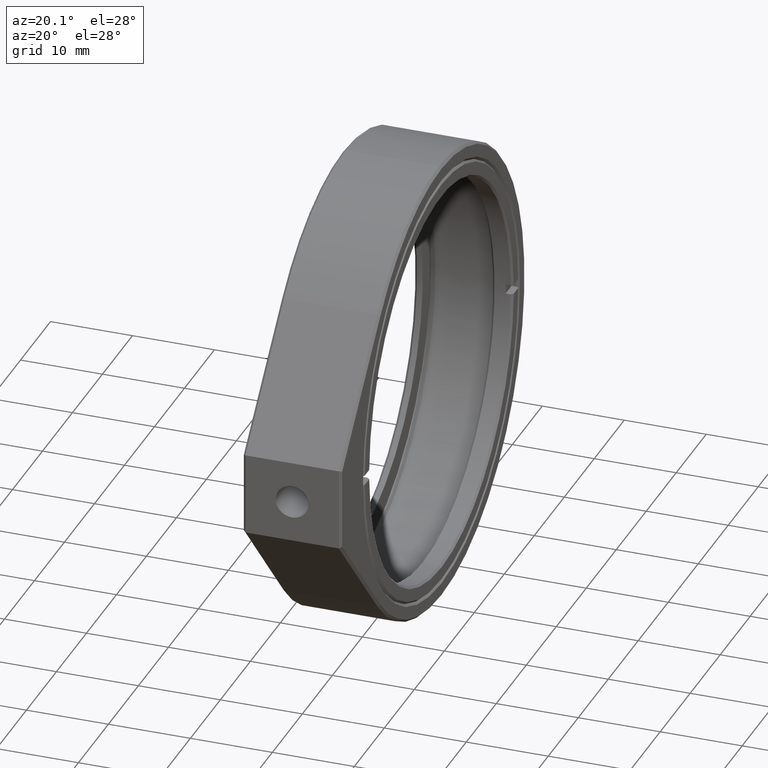
[diagram: clean part render]
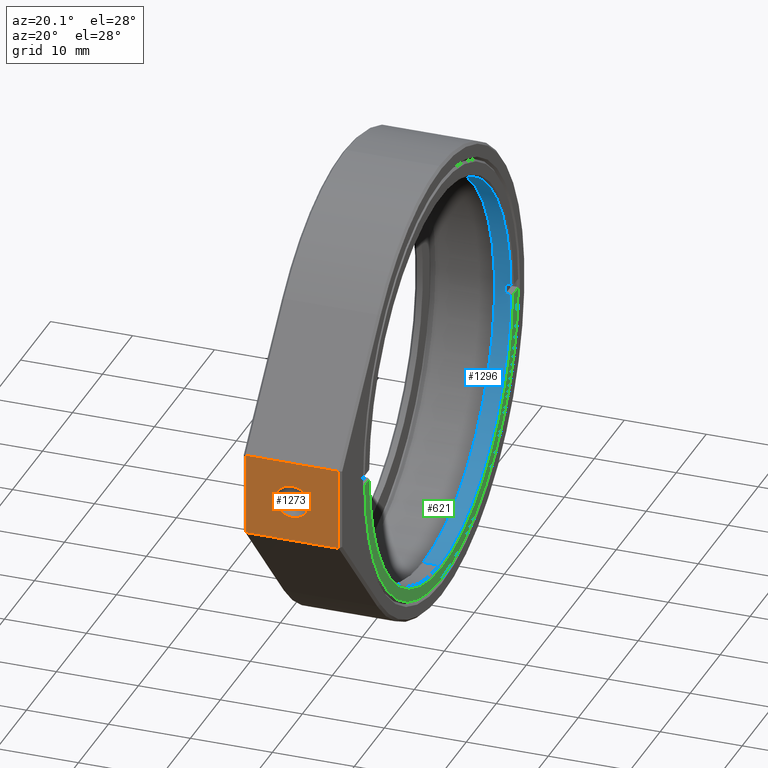
[diagram: same view with three faces highlighted in distinct colors, each labeled with its STEP entity id]
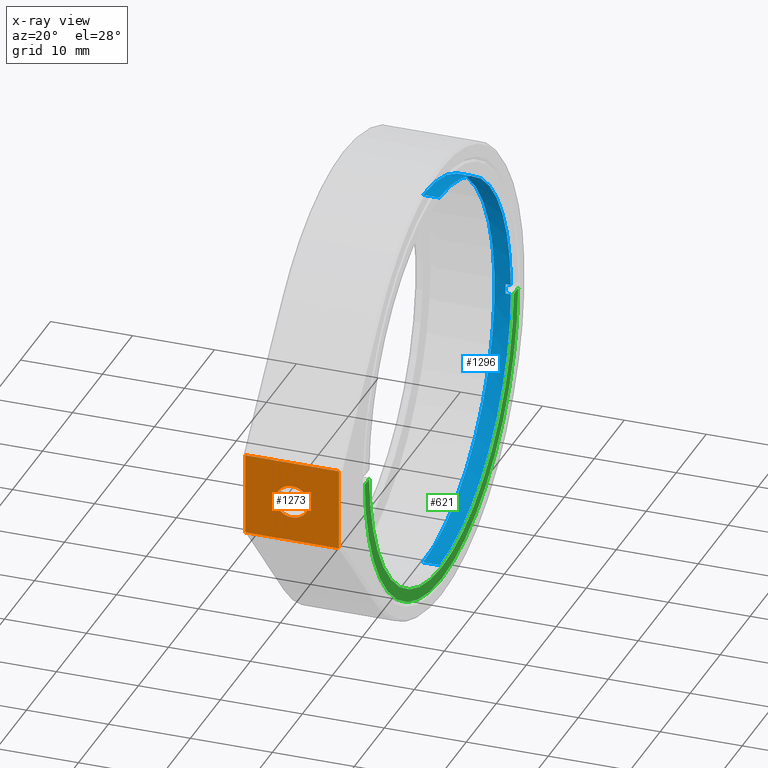
[diagram: x-ray of the same camera — body ghosted, the three highlighted faces saturated]
A machine part, auxiliary view with three faces highlighted in distinct colors.
The next image is the same camera in x-ray (body ghosted, the three faces saturated) — at least one of them is partly hidden behind the body in this view.
Their STEP definitions:

[orange] entity #1273 — the highlighted planar face has unit normal (-0, 1, 0).
#38 = VERTEX_POINT ( 'NONE', #155 ) ;
#46 = EDGE_CURVE ( 'NONE', #516, #898, #713, .T. ) ;
#58 = DIRECTION ( 'NONE',  ( -0.0000000000000000000, -1.000000000000000000, -0.0000000000000000000 ) ) ;
#85 = CARTESIAN_POINT ( 'NONE',  ( 6.000000000000000000, -33.39999999999999858, 4.999999999999995559 ) ) ;
#99 = VECTOR ( 'NONE', #1312, 1000.000000000000000 ) ;
#105 = DIRECTION ( 'NONE',  ( -0.0000000000000000000, 1.000000000000000000, 0.0000000000000000000 ) ) ;
#113 = DIRECTION ( 'NONE',  ( 0.0000000000000000000, -0.0000000000000000000, 1.000000000000000000 ) ) ;
#114 = DIRECTION ( 'NONE',  ( 0.0000000000000000000, 0.0000000000000000000, -1.000000000000000000 ) ) ;
#155 = CARTESIAN_POINT ( 'NONE',  ( 2.479909768273388821E-16, -33.39999999999999858, 2.024999999999999023 ) ) ;
#171 = ORIENTED_EDGE ( 'NONE', *, *, #46, .F. ) ;
#179 = EDGE_CURVE ( 'NONE', #38, #1139, #1510, .T. ) ;
#199 = CARTESIAN_POINT ( 'NONE',  ( 5.700000000000012612, -33.39999999999999858, -5.000000000000004441 ) ) ;
#215 = PLANE ( 'NONE',  #1628 ) ;
#216 = CARTESIAN_POINT ( 'NONE',  ( 0.0000000000000000000, -33.39999999999999858, 0.0000000000000000000 ) ) ;
#239 = CIRCLE ( 'NONE', #326, 2.024999999999999023 ) ;
#297 = VECTOR ( 'NONE', #1530, 1000.000000000000000 ) ;
#324 = AXIS2_PLACEMENT_3D ( 'NONE', #216, #58, #757 ) ;
#326 = AXIS2_PLACEMENT_3D ( 'NONE', #1587, #1743, #114 ) ;
#369 = EDGE_CURVE ( 'NONE', #1139, #38, #239, .T. ) ;
#396 = CARTESIAN_POINT ( 'NONE',  ( 5.700000000000012612, -33.39999999999999858, 4.999999999999995559 ) ) ;
#444 = VECTOR ( 'NONE', #1118, 1000.000000000000000 ) ;
#446 = LINE ( 'NONE', #1546, #444 ) ;
#495 = FACE_OUTER_BOUND ( 'NONE', #957, .T. ) ;
#516 = VERTEX_POINT ( 'NONE', #199 ) ;
#538 = EDGE_LOOP ( 'NONE', ( #1644, #682 ) ) ;
#682 = ORIENTED_EDGE ( 'NONE', *, *, #179, .F. ) ;
#713 = LINE ( 'NONE', #988, #297 ) ;
#757 = DIRECTION ( 'NONE',  ( 0.0000000000000000000, 0.0000000000000000000, -1.000000000000000000 ) ) ;
#769 = EDGE_CURVE ( 'NONE', #956, #898, #1742, .T. ) ;
#822 = CARTESIAN_POINT ( 'NONE',  ( 6.000000000000000000, -33.39999999999999858, 4.999999999999995559 ) ) ;
#840 = VECTOR ( 'NONE', #1760, 1000.000000000000000 ) ;
#873 = EDGE_CURVE ( 'NONE', #1662, #956, #1005, .T. ) ;
#898 = VERTEX_POINT ( 'NONE', #1410 ) ;
#936 = ORIENTED_EDGE ( 'NONE', *, *, #1140, .T. ) ;
#956 = VERTEX_POINT ( 'NONE', #972 ) ;
#957 = EDGE_LOOP ( 'NONE', ( #1077, #1608, #171, #936 ) ) ;
#972 = CARTESIAN_POINT ( 'NONE',  ( -5.699999999999991296, -33.39999999999999858, 4.999999999999995559 ) ) ;
#988 = CARTESIAN_POINT ( 'NONE',  ( 6.000000000000000000, -33.39999999999999858, -5.000000000000004441 ) ) ;
#1005 = LINE ( 'NONE', #822, #840 ) ;
#1077 = ORIENTED_EDGE ( 'NONE', *, *, #873, .T. ) ;
#1118 = DIRECTION ( 'NONE',  ( 0.0000000000000000000, 0.0000000000000000000, 1.000000000000000000 ) ) ;
#1139 = VERTEX_POINT ( 'NONE', #1687 ) ;
#1140 = EDGE_CURVE ( 'NONE', #516, #1662, #446, .T. ) ;
#1273 = ADVANCED_FACE ( 'NONE', ( #1314, #495 ), #215, .F. ) ;
#1312 = DIRECTION ( 'NONE',  ( 0.0000000000000000000, 0.0000000000000000000, -1.000000000000000000 ) ) ;
#1314 = FACE_BOUND ( 'NONE', #538, .T. ) ;
#1410 = CARTESIAN_POINT ( 'NONE',  ( -5.699999999999991296, -33.39999999999999858, -5.000000000000004441 ) ) ;
#1510 = CIRCLE ( 'NONE', #324, 2.024999999999999023 ) ;
#1530 = DIRECTION ( 'NONE',  ( -1.000000000000000000, -0.0000000000000000000, -0.0000000000000000000 ) ) ;
#1546 = CARTESIAN_POINT ( 'NONE',  ( 5.700000000000012612, -33.39999999999999858, 4.999999999999995559 ) ) ;
#1587 = CARTESIAN_POINT ( 'NONE',  ( 0.0000000000000000000, -33.39999999999999858, 0.0000000000000000000 ) ) ;
#1608 = ORIENTED_EDGE ( 'NONE', *, *, #769, .T. ) ;
#1613 = CARTESIAN_POINT ( 'NONE',  ( -5.699999999999991296, -33.39999999999999858, 4.999999999999995559 ) ) ;
#1628 = AXIS2_PLACEMENT_3D ( 'NONE', #85, #105, #113 ) ;
#1644 = ORIENTED_EDGE ( 'NONE', *, *, #369, .F. ) ;
#1662 = VERTEX_POINT ( 'NONE', #396 ) ;
#1687 = CARTESIAN_POINT ( 'NONE',  ( 0.0000000000000000000, -33.39999999999999858, -2.024999999999999023 ) ) ;
#1742 = LINE ( 'NONE', #1613, #99 ) ;
#1743 = DIRECTION ( 'NONE',  ( -0.0000000000000000000, -1.000000000000000000, -0.0000000000000000000 ) ) ;
#1760 = DIRECTION ( 'NONE',  ( -1.000000000000000000, -0.0000000000000000000, -0.0000000000000000000 ) ) ;

[blue] entity #1296 — the highlighted cylindrical surface (partial cylindrical patch) has radius 23.8445 mm, axis along (-1, -0, 0).
#43 = DIRECTION ( 'NONE',  ( -1.000000000000000000, -0.0000000000000000000, -0.0000000000000000000 ) ) ;
#55 = EDGE_CURVE ( 'NONE', #733, #1610, #861, .T. ) ;
#84 = EDGE_CURVE ( 'NONE', #218, #733, #836, .T. ) ;
#92 = VECTOR ( 'NONE', #1083, 1000.000000000000000 ) ;
#101 = DIRECTION ( 'NONE',  ( -1.000000000000000000, -0.0000000000000000000, 0.0000000000000000000 ) ) ;
#108 = DIRECTION ( 'NONE',  ( 1.000000000000000000, 0.0000000000000000000, 0.0000000000000000000 ) ) ;
#203 = ORIENTED_EDGE ( 'NONE', *, *, #702, .T. ) ;
#218 = VERTEX_POINT ( 'NONE', #1038 ) ;
#228 = CARTESIAN_POINT ( 'NONE',  ( 6.000000000000005329, 0.0000000000000000000, 0.0000000000000000000 ) ) ;
#299 = VERTEX_POINT ( 'NONE', #1331 ) ;
#356 = CIRCLE ( 'NONE', #497, 23.84449999999999648 ) ;
#365 = ORIENTED_EDGE ( 'NONE', *, *, #1711, .F. ) ;
#405 = DIRECTION ( 'NONE',  ( 1.000000000000000000, 0.0000000000000000000, 0.0000000000000000000 ) ) ;
#429 = CARTESIAN_POINT ( 'NONE',  ( 6.000000000000005329, 23.83694989401957542, -0.5999999999999968692 ) ) ;
#468 = CARTESIAN_POINT ( 'NONE',  ( 5.100000000000004974, 23.83694989401957542, -0.5999999999999968692 ) ) ;
#493 = VECTOR ( 'NONE', #1371, 1000.000000000000000 ) ;
#497 = AXIS2_PLACEMENT_3D ( 'NONE', #802, #1339, #1137 ) ;
#555 = LINE ( 'NONE', #1336, #92 ) ;
#588 = DIRECTION ( 'NONE',  ( 0.0000000000000000000, 0.0000000000000000000, -1.000000000000000000 ) ) ;
#663 = VERTEX_POINT ( 'NONE', #468 ) ;
#675 = CARTESIAN_POINT ( 'NONE',  ( 3.750000000000001776, 2.920109060226906181E-15, -23.84449999999999648 ) ) ;
#702 = EDGE_CURVE ( 'NONE', #299, #218, #1513, .T. ) ;
#733 = VERTEX_POINT ( 'NONE', #1605 ) ;
#743 = AXIS2_PLACEMENT_3D ( 'NONE', #1381, #43, #588 ) ;
#749 = CIRCLE ( 'NONE', #1097, 23.84449999999999648 ) ;
#750 = CYLINDRICAL_SURFACE ( 'NONE', #800, 23.84449999999999648 ) ;
#778 = ORIENTED_EDGE ( 'NONE', *, *, #998, .T. ) ;
#791 = VERTEX_POINT ( 'NONE', #1184 ) ;
#800 = AXIS2_PLACEMENT_3D ( 'NONE', #228, #1301, #1580 ) ;
#802 = CARTESIAN_POINT ( 'NONE',  ( 5.100000000000004974, 0.0000000000000000000, 0.0000000000000000000 ) ) ;
#827 = EDGE_CURVE ( 'NONE', #663, #1284, #356, .T. ) ;
#835 = LINE ( 'NONE', #429, #1703 ) ;
#836 = LINE ( 'NONE', #1396, #493 ) ;
#843 = CARTESIAN_POINT ( 'NONE',  ( 5.749999999999987566, 0.0000000000000000000, 0.0000000000000000000 ) ) ;
#861 = CIRCLE ( 'NONE', #743, 23.84449999999999648 ) ;
#915 = ORIENTED_EDGE ( 'NONE', *, *, #55, .T. ) ;
#998 = EDGE_CURVE ( 'NONE', #1111, #791, #749, .T. ) ;
#1038 = CARTESIAN_POINT ( 'NONE',  ( 5.749999999999987566, 0.0000000000000000000, 23.84449999999999648 ) ) ;
#1083 = DIRECTION ( 'NONE',  ( -1.000000000000000000, -0.0000000000000000000, 0.0000000000000000000 ) ) ;
#1097 = AXIS2_PLACEMENT_3D ( 'NONE', #843, #108, #1326 ) ;
#1111 = VERTEX_POINT ( 'NONE', #1528 ) ;
#1125 = ORIENTED_EDGE ( 'NONE', *, *, #1604, .F. ) ;
#1137 = DIRECTION ( 'NONE',  ( 0.0000000000000000000, 0.0000000000000000000, -1.000000000000000000 ) ) ;
#1184 = CARTESIAN_POINT ( 'NONE',  ( 5.749999999999987566, 23.83694989401957542, -0.5999999999999969802 ) ) ;
#1186 = FACE_OUTER_BOUND ( 'NONE', #1272, .T. ) ;
#1189 = ORIENTED_EDGE ( 'NONE', *, *, #84, .T. ) ;
#1207 = DIRECTION ( 'NONE',  ( 1.000000000000000000, 0.0000000000000000000, -0.0000000000000000000 ) ) ;
#1272 = EDGE_LOOP ( 'NONE', ( #1125, #778, #365, #1445, #1568, #203, #1189, #915 ) ) ;
#1284 = VERTEX_POINT ( 'NONE', #1599 ) ;
#1296 = ADVANCED_FACE ( 'NONE', ( #1186 ), #750, .F. ) ;
#1301 = DIRECTION ( 'NONE',  ( -1.000000000000000000, -0.0000000000000000000, 0.0000000000000000000 ) ) ;
#1307 = LINE ( 'NONE', #1446, #1645 ) ;
#1326 = DIRECTION ( 'NONE',  ( 0.0000000000000000000, 0.0000000000000000000, -1.000000000000000000 ) ) ;
#1331 = CARTESIAN_POINT ( 'NONE',  ( 5.749999999999987566, 23.83694989401957542, 0.6000000000000028644 ) ) ;
#1336 = CARTESIAN_POINT ( 'NONE',  ( 6.000000000000005329, 2.920109060226906181E-15, -23.84449999999999648 ) ) ;
#1339 = DIRECTION ( 'NONE',  ( 1.000000000000000000, 0.0000000000000000000, 0.0000000000000000000 ) ) ;
#1371 = DIRECTION ( 'NONE',  ( -1.000000000000000000, -0.0000000000000000000, 0.0000000000000000000 ) ) ;
#1381 = CARTESIAN_POINT ( 'NONE',  ( 3.750000000000001776, 0.0000000000000000000, 0.0000000000000000000 ) ) ;
#1396 = CARTESIAN_POINT ( 'NONE',  ( 6.000000000000005329, 0.0000000000000000000, 23.84449999999999648 ) ) ;
#1445 = ORIENTED_EDGE ( 'NONE', *, *, #827, .T. ) ;
#1446 = CARTESIAN_POINT ( 'NONE',  ( 6.000000000000005329, 23.83694989401957542, 0.6000000000000029754 ) ) ;
#1475 = CARTESIAN_POINT ( 'NONE',  ( 5.749999999999987566, 0.0000000000000000000, 0.0000000000000000000 ) ) ;
#1485 = DIRECTION ( 'NONE',  ( 0.0000000000000000000, 0.0000000000000000000, -1.000000000000000000 ) ) ;
#1513 = CIRCLE ( 'NONE', #1596, 23.84449999999999648 ) ;
#1524 = EDGE_CURVE ( 'NONE', #299, #1284, #1307, .T. ) ;
#1528 = CARTESIAN_POINT ( 'NONE',  ( 5.749999999999987566, 2.920109060226906181E-15, -23.84449999999999648 ) ) ;
#1568 = ORIENTED_EDGE ( 'NONE', *, *, #1524, .F. ) ;
#1580 = DIRECTION ( 'NONE',  ( 0.0000000000000000000, 0.0000000000000000000, 1.000000000000000000 ) ) ;
#1596 = AXIS2_PLACEMENT_3D ( 'NONE', #1475, #405, #1485 ) ;
#1599 = CARTESIAN_POINT ( 'NONE',  ( 5.100000000000004974, 23.83694989401957542, 0.6000000000000029754 ) ) ;
#1604 = EDGE_CURVE ( 'NONE', #1111, #1610, #555, .T. ) ;
#1605 = CARTESIAN_POINT ( 'NONE',  ( 3.750000000000001776, 0.0000000000000000000, 23.84449999999999648 ) ) ;
#1610 = VERTEX_POINT ( 'NONE', #675 ) ;
#1645 = VECTOR ( 'NONE', #101, 1000.000000000000000 ) ;
#1703 = VECTOR ( 'NONE', #1207, 1000.000000000000000 ) ;
#1711 = EDGE_CURVE ( 'NONE', #663, #791, #835, .T. ) ;

[green] entity #621 — the highlighted planar face has unit normal (1, 0, 0).
#39 = CIRCLE ( 'NONE', #1096, 25.59450000000000713 ) ;
#134 = EDGE_CURVE ( 'NONE', #211, #941, #364, .T. ) ;
#142 = CARTESIAN_POINT ( 'NONE',  ( 6.000000000000005329, 0.0000000000000000000, 0.0000000000000000000 ) ) ;
#211 = VERTEX_POINT ( 'NONE', #223 ) ;
#214 = DIRECTION ( 'NONE',  ( 1.000000000000000000, 0.0000000000000000000, 0.0000000000000000000 ) ) ;
#220 = DIRECTION ( 'NONE',  ( 1.000000000000000000, 0.0000000000000000000, 0.0000000000000000000 ) ) ;
#223 = CARTESIAN_POINT ( 'NONE',  ( 6.000000000000005329, -25.58746627257182027, -0.6000000000000029754 ) ) ;
#262 = DIRECTION ( 'NONE',  ( 0.0000000000000000000, 0.0000000000000000000, -1.000000000000000000 ) ) ;
#336 = DIRECTION ( 'NONE',  ( -1.000000000000000000, -0.0000000000000000000, -0.0000000000000000000 ) ) ;
#364 = LINE ( 'NONE', #897, #834 ) ;
#379 = CARTESIAN_POINT ( 'NONE',  ( 6.000000000000005329, 0.0000000000000000000, -24.09450000000000358 ) ) ;
#385 = AXIS2_PLACEMENT_3D ( 'NONE', #1432, #220, #1133 ) ;
#398 = DIRECTION ( 'NONE',  ( -1.000000000000000000, -0.0000000000000000000, -0.0000000000000000000 ) ) ;
#416 = ORIENTED_EDGE ( 'NONE', *, *, #891, .T. ) ;
#426 = ORIENTED_EDGE ( 'NONE', *, *, #134, .F. ) ;
#450 = ORIENTED_EDGE ( 'NONE', *, *, #870, .F. ) ;
#465 = LINE ( 'NONE', #1221, #1540 ) ;
#595 = CARTESIAN_POINT ( 'NONE',  ( 6.000000000000005329, 25.58746627257182027, -0.5999999999999966471 ) ) ;
#600 = EDGE_CURVE ( 'NONE', #211, #1165, #39, .T. ) ;
#615 = DIRECTION ( 'NONE',  ( 0.0000000000000000000, 1.000000000000000000, 1.223599594662212253E-16 ) ) ;
#621 = ADVANCED_FACE ( 'NONE', ( #1414 ), #763, .T. ) ;
#695 = CARTESIAN_POINT ( 'NONE',  ( 6.000000000000005329, -24.08702825692700600, -0.6000000000000027534 ) ) ;
#763 = PLANE ( 'NONE',  #385 ) ;
#819 = EDGE_CURVE ( 'NONE', #1349, #941, #1152, .T. ) ;
#828 = ORIENTED_EDGE ( 'NONE', *, *, #600, .T. ) ;
#834 = VECTOR ( 'NONE', #615, 1000.000000000000000 ) ;
#870 = EDGE_CURVE ( 'NONE', #1292, #1165, #465, .T. ) ;
#872 = DIRECTION ( 'NONE',  ( 0.0000000000000000000, 8.881784197001252323E-16, -1.000000000000000000 ) ) ;
#891 = EDGE_CURVE ( 'NONE', #1292, #1349, #1341, .T. ) ;
#897 = CARTESIAN_POINT ( 'NONE',  ( 6.000000000000005329, 105.0000000000000000, -0.5999999999999870992 ) ) ;
#941 = VERTEX_POINT ( 'NONE', #695 ) ;
#1043 = CARTESIAN_POINT ( 'NONE',  ( 6.000000000000005329, 24.08702825692700600, -0.5999999999999968692 ) ) ;
#1070 = CARTESIAN_POINT ( 'NONE',  ( 6.000000000000005329, 0.0000000000000000000, 0.0000000000000000000 ) ) ;
#1096 = AXIS2_PLACEMENT_3D ( 'NONE', #1572, #214, #1440 ) ;
#1133 = DIRECTION ( 'NONE',  ( 0.0000000000000000000, 0.0000000000000000000, -1.000000000000000000 ) ) ;
#1152 = CIRCLE ( 'NONE', #1650, 24.09450000000000358 ) ;
#1165 = VERTEX_POINT ( 'NONE', #595 ) ;
#1221 = CARTESIAN_POINT ( 'NONE',  ( 6.000000000000005329, 105.0000000000000000, -0.5999999999999870992 ) ) ;
#1246 = EDGE_LOOP ( 'NONE', ( #426, #828, #450, #416, #1374 ) ) ;
#1292 = VERTEX_POINT ( 'NONE', #1043 ) ;
#1341 = CIRCLE ( 'NONE', #1624, 24.09450000000000358 ) ;
#1349 = VERTEX_POINT ( 'NONE', #379 ) ;
#1374 = ORIENTED_EDGE ( 'NONE', *, *, #819, .T. ) ;
#1414 = FACE_OUTER_BOUND ( 'NONE', #1246, .T. ) ;
#1432 = CARTESIAN_POINT ( 'NONE',  ( 6.000000000000005329, 0.0000000000000000000, 0.0000000000000000000 ) ) ;
#1440 = DIRECTION ( 'NONE',  ( 0.0000000000000000000, 0.0000000000000000000, -1.000000000000000000 ) ) ;
#1495 = DIRECTION ( 'NONE',  ( 0.0000000000000000000, 1.000000000000000000, 1.223599594662212253E-16 ) ) ;
#1540 = VECTOR ( 'NONE', #1495, 1000.000000000000000 ) ;
#1572 = CARTESIAN_POINT ( 'NONE',  ( 6.000000000000005329, 0.0000000000000000000, 0.0000000000000000000 ) ) ;
#1624 = AXIS2_PLACEMENT_3D ( 'NONE', #142, #336, #872 ) ;
#1650 = AXIS2_PLACEMENT_3D ( 'NONE', #1070, #398, #262 ) ;